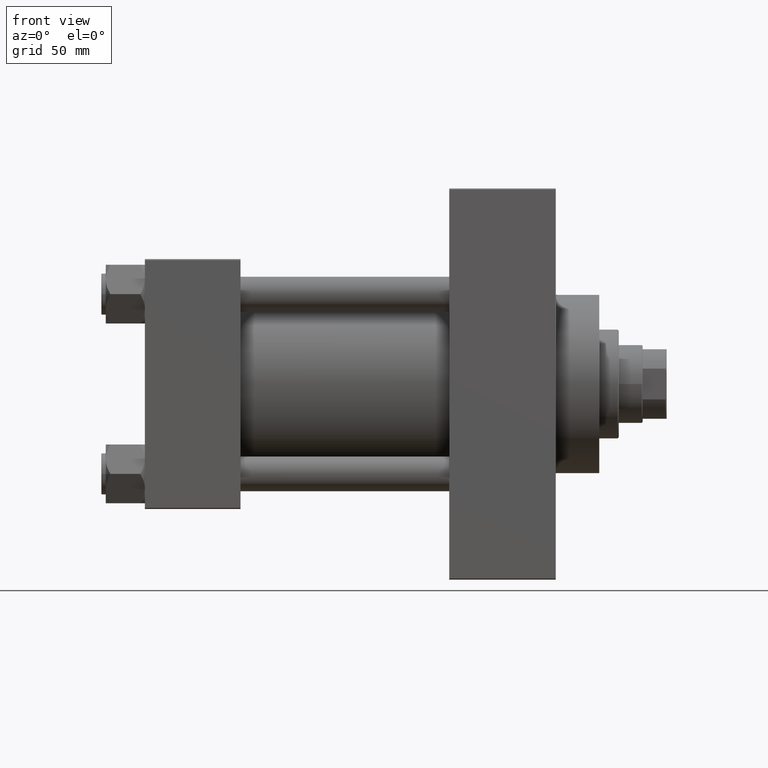
[diagram: clean part render]
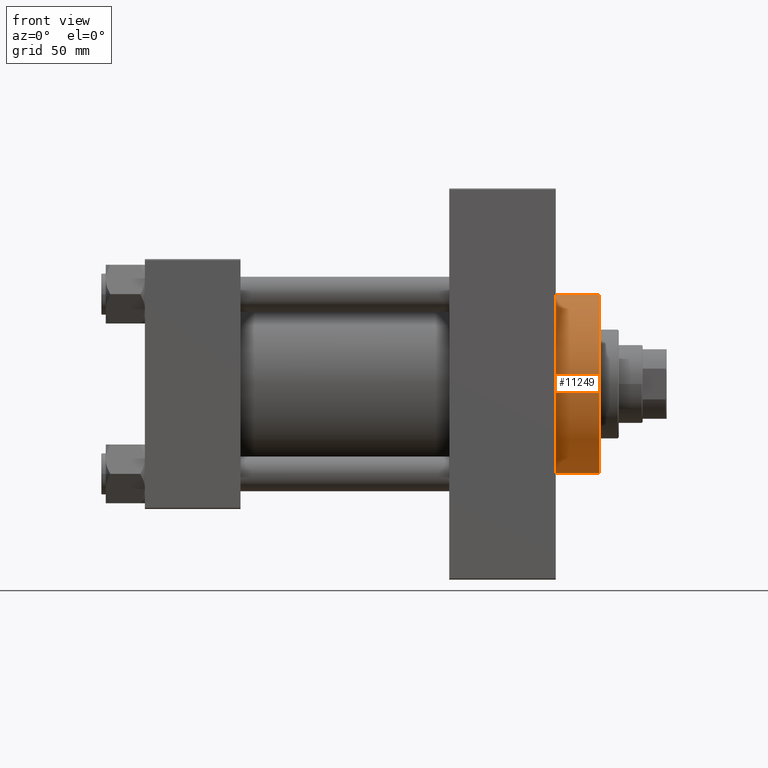
[diagram: same view with one face highlighted and labeled with its STEP entity id]
A machine part, front view. The second image highlights one B-rep face of the part: STEP entity #11249.
In plain terms, the highlighted cylindrical surface (partial cylindrical patch) has radius 41 mm, axis along (-1, -0, -0).
Its self-contained STEP definition (entity closure, byte-faithful):
#799 = VECTOR ( 'NONE', #27419, 1000.000000000000000 ) ;
#1120 = CARTESIAN_POINT ( 'NONE',  ( 209.0000000000000000, 5.021051876504148963E-15, -41.00000000000000000 ) ) ;
#3883 = ORIENTED_EDGE ( 'NONE', *, *, #27405, .F. ) ;
#5912 = LINE ( 'NONE', #39383, #31913 ) ;
#6039 = CARTESIAN_POINT ( 'NONE',  ( 189.0000000000000000, 0.000000000000000000, 41.00000000000000000 ) ) ;
#6718 = DIRECTION ( 'NONE',  ( -1.000000000000000000, -0.000000000000000000, -0.000000000000000000 ) ) ;
#8558 = AXIS2_PLACEMENT_3D ( 'NONE', #37025, #19656, #30739 ) ;
#11249 = ADVANCED_FACE ( 'NONE', ( #46970 ), #14897, .T. ) ;
#14412 = VERTEX_POINT ( 'NONE', #1120 ) ;
#14897 = CYLINDRICAL_SURFACE ( 'NONE', #46152, 41.00000000000000000 ) ;
#15859 = CARTESIAN_POINT ( 'NONE',  ( 209.0000000000000000, 0.000000000000000000, 41.00000000000000000 ) ) ;
#16982 = DIRECTION ( 'NONE',  ( 0.000000000000000000, 0.000000000000000000, -1.000000000000000000 ) ) ;
#17330 = EDGE_CURVE ( 'NONE', #23141, #17622, #29323, .T. ) ;
#17622 = VERTEX_POINT ( 'NONE', #18659 ) ;
#18659 = CARTESIAN_POINT ( 'NONE',  ( 189.0000000000000000, 5.021051876504148963E-15, -41.00000000000000000 ) ) ;
#19656 = DIRECTION ( 'NONE',  ( 1.000000000000000000, 0.000000000000000000, 0.000000000000000000 ) ) ;
#20993 = VERTEX_POINT ( 'NONE', #34295 ) ;
#22054 = AXIS2_PLACEMENT_3D ( 'NONE', #24688, #35747, #16982 ) ;
#23141 = VERTEX_POINT ( 'NONE', #6039 ) ;
#24688 = CARTESIAN_POINT ( 'NONE',  ( 209.0000000000000000, 0.000000000000000000, 0.000000000000000000 ) ) ;
#27405 = EDGE_CURVE ( 'NONE', #14412, #17622, #5912, .T. ) ;
#27419 = DIRECTION ( 'NONE',  ( -1.000000000000000000, -0.000000000000000000, -0.000000000000000000 ) ) ;
#29323 = CIRCLE ( 'NONE', #8558, 41.00000000000000000 ) ;
#29587 = CARTESIAN_POINT ( 'NONE',  ( 209.0000000000000000, 0.000000000000000000, 0.000000000000000000 ) ) ;
#30739 = DIRECTION ( 'NONE',  ( 0.000000000000000000, 0.000000000000000000, -1.000000000000000000 ) ) ;
#31187 = ORIENTED_EDGE ( 'NONE', *, *, #46302, .T. ) ;
#31840 = ORIENTED_EDGE ( 'NONE', *, *, #37177, .F. ) ;
#31913 = VECTOR ( 'NONE', #43243, 1000.000000000000000 ) ;
#34295 = CARTESIAN_POINT ( 'NONE',  ( 209.0000000000000000, 0.000000000000000000, 41.00000000000000000 ) ) ;
#34383 = EDGE_LOOP ( 'NONE', ( #3883, #31840, #31187, #41670 ) ) ;
#35747 = DIRECTION ( 'NONE',  ( 1.000000000000000000, 0.000000000000000000, 0.000000000000000000 ) ) ;
#37025 = CARTESIAN_POINT ( 'NONE',  ( 189.0000000000000000, 0.000000000000000000, 0.000000000000000000 ) ) ;
#37177 = EDGE_CURVE ( 'NONE', #20993, #14412, #40515, .T. ) ;
#39383 = CARTESIAN_POINT ( 'NONE',  ( 209.0000000000000000, 5.021051876504148963E-15, -41.00000000000000000 ) ) ;
#39476 = DIRECTION ( 'NONE',  ( 0.000000000000000000, 0.000000000000000000, 1.000000000000000000 ) ) ;
#40515 = CIRCLE ( 'NONE', #22054, 41.00000000000000000 ) ;
#41670 = ORIENTED_EDGE ( 'NONE', *, *, #17330, .T. ) ;
#41866 = LINE ( 'NONE', #15859, #799 ) ;
#43243 = DIRECTION ( 'NONE',  ( -1.000000000000000000, -0.000000000000000000, -0.000000000000000000 ) ) ;
#46152 = AXIS2_PLACEMENT_3D ( 'NONE', #29587, #6718, #39476 ) ;
#46302 = EDGE_CURVE ( 'NONE', #20993, #23141, #41866, .T. ) ;
#46970 = FACE_OUTER_BOUND ( 'NONE', #34383, .T. ) ;